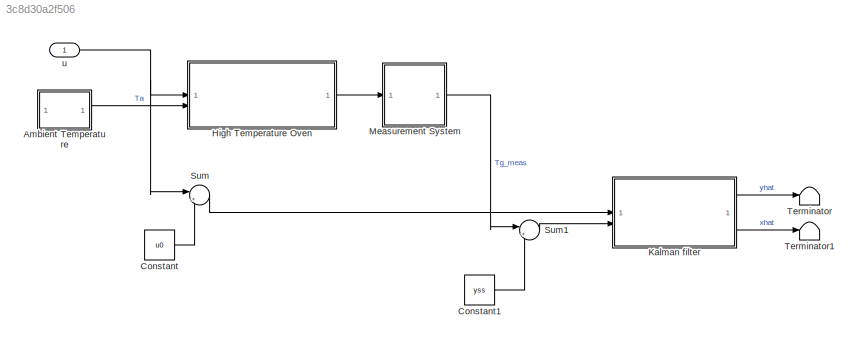
MODEL slx_3c8d30a2f506
KIND model
CONFIG AbsTol = auto
CONFIG EnableMultiTasking = off
CONFIG FixedStep = STEP_SIZE
CONFIG MaxStep = auto
CONFIG MinStep = auto
CONFIG RelTol = 1e-3
CONFIG SampleTimeConstraint = Unconstrained
CONFIG SolverName = ode4
CONFIG StartTime = 0.0
CONFIG StopTime = SIM_TIME
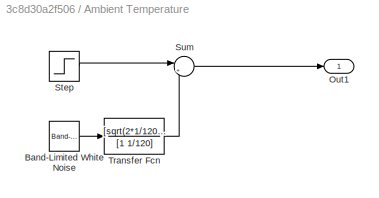
BLOCK [SubSystem] Ambient Temperature
BLOCK [Reference] Ambient Temperature/Band-Limited White Noise  REF=simulink/Sources/Band-Limited
White Noise
  SourceBlock = simulink/Sources/Band-Limited\nWhite Noise
  SourceType = Band-Limited White Noise.
BLOCK [Outport] Ambient Temperature/Out1
BLOCK [Step] Ambient Temperature/Step
  After = TafK
  Before = Ta0K
  SampleTime = 0
  Time = t_step_Ta
BLOCK [Sum] Ambient Temperature/Sum
  Inputs = |++
BLOCK [TransferFcn] Ambient Temperature/Transfer Fcn
  Denominator = [1 1/120]
  Numerator = [sqrt(2*1/120)*0.5]
BLOCK [Constant] Constant
  SampleTime = Ts
  Value = u0
BLOCK [Constant] Constant1
  SampleTime = Ts
  Value = yss
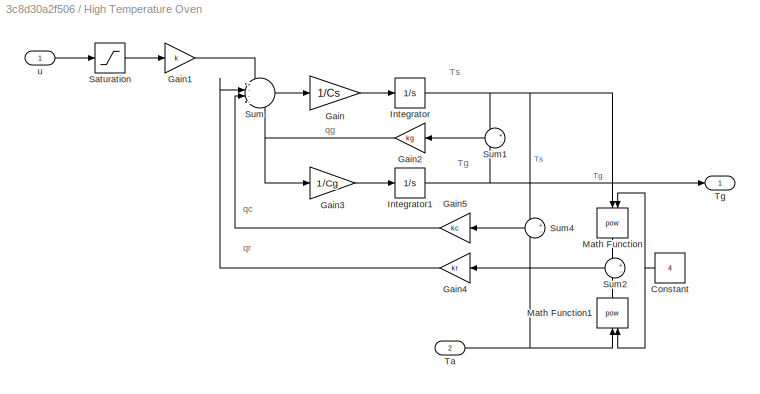
BLOCK [SubSystem] High Temperature Oven
BLOCK [Constant] High Temperature Oven/Constant
  Value = 4
BLOCK [Gain] High Temperature Oven/Gain
  Gain = 1/Cs
BLOCK [Gain] High Temperature Oven/Gain1
  Gain = k
BLOCK [Gain] High Temperature Oven/Gain2
  Gain = kg
BLOCK [Gain] High Temperature Oven/Gain3
  Gain = 1/Cg
BLOCK [Gain] High Temperature Oven/Gain4
  Gain = kr
BLOCK [Gain] High Temperature Oven/Gain5
  Gain = kc
BLOCK [Integrator] High Temperature Oven/Integrator
  InitialCondition = Ts0K
  Priority = 1
BLOCK [Integrator] High Temperature Oven/Integrator1
  InitialCondition = Tg0K
  Priority = 2
BLOCK [Math] High Temperature Oven/Math Function
  NameLocation = left
  Operator = pow
  SignedPower = on
BLOCK [Math] High Temperature Oven/Math Function1
  NameLocation = right
  Operator = pow
  SignedPower = on
BLOCK [Saturate] High Temperature Oven/Saturation
  LowerLimit = umin
  UpperLimit = umax
BLOCK [Sum] High Temperature Oven/Sum
  Inputs = +---
BLOCK [Sum] High Temperature Oven/Sum1
  Inputs = +-
BLOCK [Sum] High Temperature Oven/Sum2
  Inputs = +-
BLOCK [Sum] High Temperature Oven/Sum4
  Inputs = +-
BLOCK [Inport] High Temperature Oven/Ta
  Port = 2
BLOCK [Outport] High Temperature Oven/Tg
BLOCK [Inport] High Temperature Oven/u
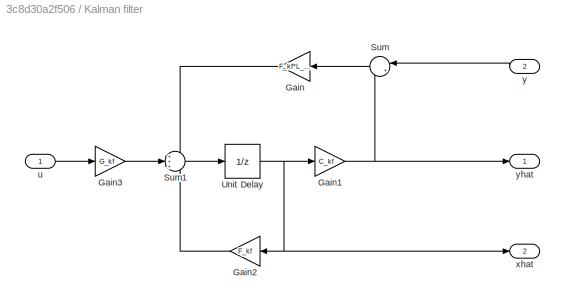
BLOCK [SubSystem] Kalman filter
BLOCK [Gain] Kalman filter/Gain
  Gain = F_kf*L_kf
  Multiplication = Matrix(K*u) (u vector)
BLOCK [Gain] Kalman filter/Gain1
  Gain = C_kf
  Multiplication = Matrix(K*u) (u vector)
BLOCK [Gain] Kalman filter/Gain2
  Gain = F_kf
  Multiplication = Matrix(K*u) (u vector)
BLOCK [Gain] Kalman filter/Gain3
  Gain = G_kf
  Multiplication = Matrix(K*u) (u vector)
BLOCK [Sum] Kalman filter/Sum
  Inputs = |+-
BLOCK [Sum] Kalman filter/Sum1
  Inputs = +++
BLOCK [UnitDelay] Kalman filter/Unit Delay
  HasFrameUpgradeWarning = on
  InitialCondition = x0hat
  SampleTime = Ts
BLOCK [Inport] Kalman filter/u
BLOCK [Outport] Kalman filter/xhat
  Port = 2
  VectorParamsAs1DForOutWhenUnconnected = off
BLOCK [Inport] Kalman filter/y
  Port = 2
BLOCK [Outport] Kalman filter/yhat
  VectorParamsAs1DForOutWhenUnconnected = off
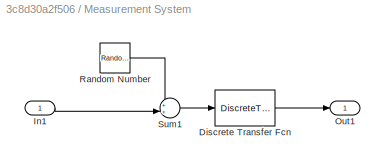
BLOCK [SubSystem] Measurement System
BLOCK [DiscreteTransferFcn] Measurement System/Discrete Transfer Fcn
  Denominator = [1]
  InputPortMap = u0
  NameLocation = top
  SampleTime = Ts
BLOCK [Inport] Measurement System/In1
BLOCK [Outport] Measurement System/Out1
BLOCK [RandomNumber] Measurement System/Random Number
  SampleTime = Ts
  Variance = V2d
BLOCK [Sum] Measurement System/Sum1
  Inputs = ++|
BLOCK [Sum] Sum
  Inputs = |+-
BLOCK [Sum] Sum1
  Inputs = |+-
BLOCK [Terminator] Terminator
BLOCK [Terminator] Terminator1
BLOCK [Inport] u
ANNOTATION High Temperature Oven: Tg
ANNOTATION High Temperature Oven: Ts
ANNOTATION High Temperature Oven: qc
ANNOTATION High Temperature Oven: qg
ANNOTATION High Temperature Oven: qr
LINE Ambient Temperature/Band-Limited White Noise:1 -> Ambient Temperature/Transfer Fcn:1
LINE Ambient Temperature/Step:1 -> Ambient Temperature/Sum:1
LINE Ambient Temperature/Sum:1 -> Ambient Temperature/Out1:1
LINE Ambient Temperature/Transfer Fcn:1 -> Ambient Temperature/Sum:2
LINE Ambient Temperature:1 -> High Temperature Oven:2
LINE Constant1:1 -> Sum1:2
LINE Constant:1 -> Sum:2
NET High Temperature Oven/Constant:1 -> High Temperature Oven/Math Function1:2, High Temperature Oven/Math Function:2
LINE High Temperature Oven/Gain1:1 -> High Temperature Oven/Sum:1
NET High Temperature Oven/Gain2:1 -> High Temperature Oven/Gain3:1, High Temperature Oven/Sum:4
LINE High Temperature Oven/Gain3:1 -> High Temperature Oven/Integrator1:1
LINE High Temperature Oven/Gain4:1 -> High Temperature Oven/Sum:2
LINE High Temperature Oven/Gain5:1 -> High Temperature Oven/Sum:3
LINE High Temperature Oven/Gain:1 -> High Temperature Oven/Integrator:1
NET High Temperature Oven/Integrator1:1 -> High Temperature Oven/Sum1:2, High Temperature Oven/Tg:1
NET High Temperature Oven/Integrator:1 -> High Temperature Oven/Math Function:1, High Temperature Oven/Sum1:1, High Temperature Oven/Sum4:1
LINE High Temperature Oven/Math Function1:1 -> High Temperature Oven/Sum2:2
LINE High Temperature Oven/Math Function:1 -> High Temperature Oven/Sum2:1
LINE High Temperature Oven/Saturation:1 -> High Temperature Oven/Gain1:1
LINE High Temperature Oven/Sum1:1 -> High Temperature Oven/Gain2:1
LINE High Temperature Oven/Sum2:1 -> High Temperature Oven/Gain4:1
LINE High Temperature Oven/Sum4:1 -> High Temperature Oven/Gain5:1
LINE High Temperature Oven/Sum:1 -> High Temperature Oven/Gain:1
NET High Temperature Oven/Ta:1 -> High Temperature Oven/Math Function1:1, High Temperature Oven/Sum4:2
LINE High Temperature Oven/u:1 -> High Temperature Oven/Saturation:1
LINE High Temperature Oven:1 -> Measurement System:1
NET Kalman filter/Gain1:1 -> Kalman filter/Sum:2, Kalman filter/yhat:1
LINE Kalman filter/Gain2:1 -> Kalman filter/Sum1:3
LINE Kalman filter/Gain3:1 -> Kalman filter/Sum1:2
LINE Kalman filter/Gain:1 -> Kalman filter/Sum1:1
LINE Kalman filter/Sum1:1 -> Kalman filter/Unit Delay:1
LINE Kalman filter/Sum:1 -> Kalman filter/Gain:1
NET Kalman filter/Unit Delay:1 -> Kalman filter/Gain1:1, Kalman filter/Gain2:1, Kalman filter/xhat:1
LINE Kalman filter/u:1 -> Kalman filter/Gain3:1
LINE Kalman filter/y:1 -> Kalman filter/Sum:1
LINE Kalman filter:1 -> Terminator:1
LINE Kalman filter:2 -> Terminator1:1
LINE Measurement System/Discrete Transfer Fcn:1 -> Measurement System/Out1:1
LINE Measurement System/In1:1 -> Measurement System/Sum1:2
LINE Measurement System/Random Number:1 -> Measurement System/Sum1:1
LINE Measurement System/Sum1:1 -> Measurement System/Discrete Transfer Fcn:1
LINE Measurement System:1 -> Sum1:1
LINE Sum1:1 -> Kalman filter:2
LINE Sum:1 -> Kalman filter:1
NET u:1 -> High Temperature Oven:1, Sum:1
note: NET lines group one-source signal fan-out (src -> all destinations, sorted); 1:1 wires keep LINE
